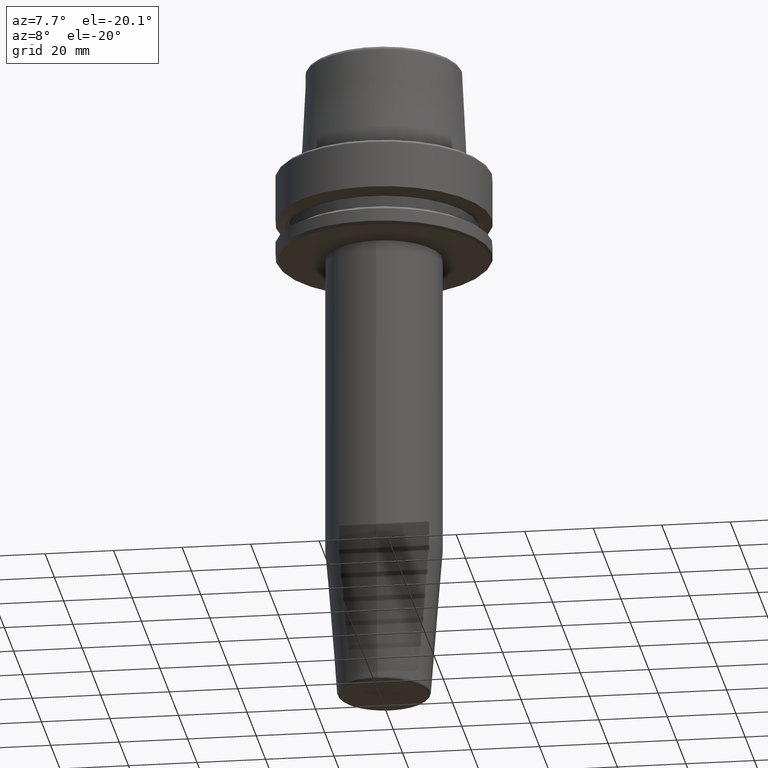
[diagram: clean part render]
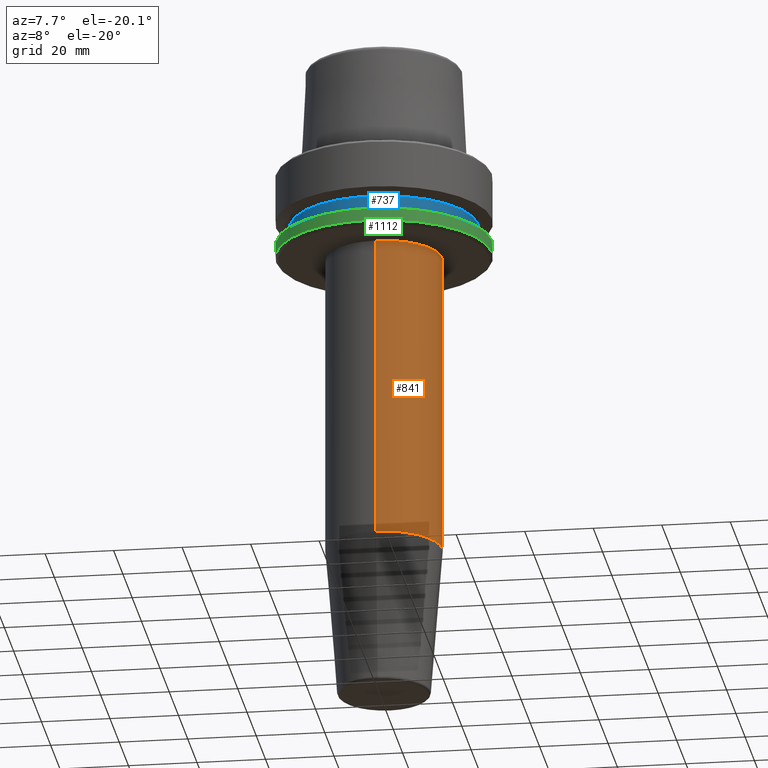
[diagram: same view with three faces highlighted in distinct colors, each labeled with its STEP entity id]
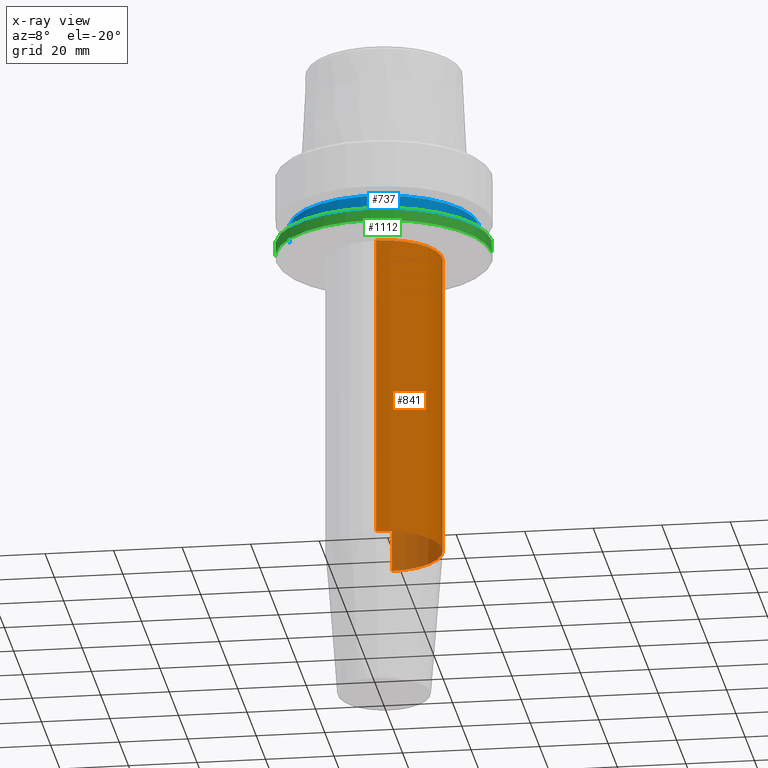
[diagram: x-ray of the same camera — body ghosted, the three highlighted faces saturated]
A machine part, auxiliary view with three faces highlighted in distinct colors.
The next image is the same camera in x-ray (body ghosted, the three faces saturated) — at least one of them is partly hidden behind the body in this view.
Their STEP definitions:

[orange] entity #841 — the highlighted cylindrical surface (partial cylindrical patch) has radius 17 mm, axis along (-0, 0, -1).
#1 = ORIENTED_EDGE ( 'NONE', *, *, #88, .T. ) ;
#51 = DIRECTION ( 'NONE',  ( 0.0000000000000000000, 1.000000000000000000, 0.0000000000000000000 ) ) ;
#88 = EDGE_CURVE ( 'NONE', #239, #1198, #798, .T. ) ;
#115 = DIRECTION ( 'NONE',  ( 0.0000000000000000000, 1.000000000000000000, 0.0000000000000000000 ) ) ;
#151 = AXIS2_PLACEMENT_3D ( 'NONE', #1211, #650, #51 ) ;
#175 = EDGE_CURVE ( 'NONE', #446, #239, #914, .T. ) ;
#181 = CARTESIAN_POINT ( 'NONE',  ( 2.081899558550499500E-015, -16.99999999999998600, -160.0000000000000000 ) ) ;
#188 = CARTESIAN_POINT ( 'NONE',  ( 0.0000000000000000000, 16.99999999999998900, -25.99999999999999600 ) ) ;
#211 = AXIS2_PLACEMENT_3D ( 'NONE', #262, #940, #366 ) ;
#222 = ORIENTED_EDGE ( 'NONE', *, *, #175, .T. ) ;
#239 = VERTEX_POINT ( 'NONE', #939 ) ;
#262 = CARTESIAN_POINT ( 'NONE',  ( 0.0000000000000000000, 0.0000000000000000000, -25.99999999999999600 ) ) ;
#313 = VERTEX_POINT ( 'NONE', #1248 ) ;
#324 = CYLINDRICAL_SURFACE ( 'NONE', #536, 16.99999999999998900 ) ;
#366 = DIRECTION ( 'NONE',  ( 1.000000000000000000, 0.0000000000000000000, 0.0000000000000000000 ) ) ;
#446 = VERTEX_POINT ( 'NONE', #188 ) ;
#536 = AXIS2_PLACEMENT_3D ( 'NONE', #895, #995, #115 ) ;
#560 = CIRCLE ( 'NONE', #151, 16.99999999999998600 ) ;
#572 = ORIENTED_EDGE ( 'NONE', *, *, #1237, .F. ) ;
#650 = DIRECTION ( 'NONE',  ( -0.0000000000000000000, 3.655662087007025400E-017, -1.000000000000000000 ) ) ;
#682 = EDGE_CURVE ( 'NONE', #446, #313, #1160, .T. ) ;
#699 = CARTESIAN_POINT ( 'NONE',  ( 0.0000000000000000000, -16.99999999999998200, -115.5282834233845500 ) ) ;
#776 = VECTOR ( 'NONE', #1055, 1000.000000000000000 ) ;
#798 = LINE ( 'NONE', #181, #776 ) ;
#814 = EDGE_LOOP ( 'NONE', ( #222, #1, #572, #822 ) ) ;
#822 = ORIENTED_EDGE ( 'NONE', *, *, #682, .F. ) ;
#841 = ADVANCED_FACE ( 'NONE', ( #854 ), #324, .T. ) ;
#854 = FACE_OUTER_BOUND ( 'NONE', #814, .T. ) ;
#895 = CARTESIAN_POINT ( 'NONE',  ( 0.0000000000000000000, 4.898587196589414600E-015, -160.0000000000000000 ) ) ;
#897 = VECTOR ( 'NONE', #1115, 1000.000000000000000 ) ;
#914 = CIRCLE ( 'NONE', #211, 16.99999999999998900 ) ;
#922 = CARTESIAN_POINT ( 'NONE',  ( 0.0000000000000000000, 16.99999999999999300, -160.0000000000000000 ) ) ;
#939 = CARTESIAN_POINT ( 'NONE',  ( 2.081899558550499900E-015, -16.99999999999998900, -25.99999999999999600 ) ) ;
#940 = DIRECTION ( 'NONE',  ( 0.0000000000000000000, 0.0000000000000000000, -1.000000000000000000 ) ) ;
#995 = DIRECTION ( 'NONE',  ( -0.0000000000000000000, 3.655662087007025400E-017, -1.000000000000000000 ) ) ;
#1055 = DIRECTION ( 'NONE',  ( -0.0000000000000000000, 3.655662087007025400E-017, -1.000000000000000000 ) ) ;
#1115 = DIRECTION ( 'NONE',  ( -0.0000000000000000000, 3.655662087007025400E-017, -1.000000000000000000 ) ) ;
#1160 = LINE ( 'NONE', #922, #897 ) ;
#1198 = VERTEX_POINT ( 'NONE', #699 ) ;
#1211 = CARTESIAN_POINT ( 'NONE',  ( 0.0000000000000000000, 3.272851514256864700E-015, -115.5282834233845500 ) ) ;
#1237 = EDGE_CURVE ( 'NONE', #313, #1198, #560, .T. ) ;
#1248 = CARTESIAN_POINT ( 'NONE',  ( 2.081899558550499100E-015, 16.99999999999998900, -115.5282834233845500 ) ) ;

[blue] entity #737 — the highlighted cylindrical surface (partial cylindrical patch) has radius 27.5 mm, axis along (-0, -0, 1).
#31 = DIRECTION ( 'NONE',  ( 1.000000000000000000, 0.0000000000000000000, 0.0000000000000000000 ) ) ;
#57 = VERTEX_POINT ( 'NONE', #1014 ) ;
#87 = DIRECTION ( 'NONE',  ( -0.0000000000000000000, -0.0000000000000000000, 1.000000000000000000 ) ) ;
#92 = CIRCLE ( 'NONE', #590, 27.49999999999999600 ) ;
#190 = CIRCLE ( 'NONE', #983, 27.49999999999999600 ) ;
#194 = LINE ( 'NONE', #804, #1259 ) ;
#213 = ORIENTED_EDGE ( 'NONE', *, *, #433, .T. ) ;
#315 = DIRECTION ( 'NONE',  ( -0.0000000000000000000, -0.0000000000000000000, 1.000000000000000000 ) ) ;
#336 = VERTEX_POINT ( 'NONE', #1011 ) ;
#337 = CARTESIAN_POINT ( 'NONE',  ( 27.49999999999999600, 0.0000000000000000000, -19.90000000000001600 ) ) ;
#411 = CARTESIAN_POINT ( 'NONE',  ( 27.49999999999999600, 0.0000000000000000000, 78.96908074195309300 ) ) ;
#430 = CYLINDRICAL_SURFACE ( 'NONE', #1197, 27.49999999999999600 ) ;
#433 = EDGE_CURVE ( 'NONE', #1142, #633, #92, .T. ) ;
#525 = VECTOR ( 'NONE', #1087, 1000.000000000000000 ) ;
#528 = ORIENTED_EDGE ( 'NONE', *, *, #598, .F. ) ;
#563 = ORIENTED_EDGE ( 'NONE', *, *, #573, .T. ) ;
#573 = EDGE_CURVE ( 'NONE', #633, #336, #785, .T. ) ;
#583 = DIRECTION ( 'NONE',  ( -0.0000000000000000000, -0.0000000000000000000, 1.000000000000000000 ) ) ;
#590 = AXIS2_PLACEMENT_3D ( 'NONE', #1151, #583, #1246 ) ;
#598 = EDGE_CURVE ( 'NONE', #1142, #57, #194, .T. ) ;
#633 = VERTEX_POINT ( 'NONE', #337 ) ;
#669 = CARTESIAN_POINT ( 'NONE',  ( 0.0000000000000000000, 0.0000000000000000000, 78.96908074195309300 ) ) ;
#670 = CARTESIAN_POINT ( 'NONE',  ( -27.49999999999999600, 3.367778697655220900E-015, -19.90000000000001600 ) ) ;
#686 = CARTESIAN_POINT ( 'NONE',  ( 0.0000000000000000000, 0.0000000000000000000, -16.10000000000001600 ) ) ;
#700 = FACE_OUTER_BOUND ( 'NONE', #1051, .T. ) ;
#737 = ADVANCED_FACE ( 'NONE', ( #700 ), #430, .T. ) ;
#785 = LINE ( 'NONE', #411, #525 ) ;
#804 = CARTESIAN_POINT ( 'NONE',  ( -27.49999999999999600, 3.367778697655220900E-015, 78.96908074195309300 ) ) ;
#937 = DIRECTION ( 'NONE',  ( 1.000000000000000000, 0.0000000000000000000, 0.0000000000000000000 ) ) ;
#982 = EDGE_CURVE ( 'NONE', #57, #336, #190, .T. ) ;
#983 = AXIS2_PLACEMENT_3D ( 'NONE', #686, #87, #31 ) ;
#1011 = CARTESIAN_POINT ( 'NONE',  ( 27.49999999999999600, 0.0000000000000000000, -16.10000000000001600 ) ) ;
#1014 = CARTESIAN_POINT ( 'NONE',  ( -27.49999999999999600, 3.367778697655220900E-015, -16.10000000000001600 ) ) ;
#1050 = ORIENTED_EDGE ( 'NONE', *, *, #982, .F. ) ;
#1051 = EDGE_LOOP ( 'NONE', ( #528, #213, #563, #1050 ) ) ;
#1087 = DIRECTION ( 'NONE',  ( -0.0000000000000000000, -0.0000000000000000000, 1.000000000000000000 ) ) ;
#1142 = VERTEX_POINT ( 'NONE', #670 ) ;
#1151 = CARTESIAN_POINT ( 'NONE',  ( 0.0000000000000000000, 0.0000000000000000000, -19.90000000000001600 ) ) ;
#1197 = AXIS2_PLACEMENT_3D ( 'NONE', #669, #1221, #937 ) ;
#1221 = DIRECTION ( 'NONE',  ( -0.0000000000000000000, -0.0000000000000000000, 1.000000000000000000 ) ) ;
#1246 = DIRECTION ( 'NONE',  ( 1.000000000000000000, 0.0000000000000000000, 0.0000000000000000000 ) ) ;
#1259 = VECTOR ( 'NONE', #315, 1000.000000000000000 ) ;

[green] entity #1112 — the highlighted cylindrical surface (partial cylindrical patch) has radius 31.5 mm, axis along (-0, -0, 1).
#13 = CARTESIAN_POINT ( 'NONE',  ( 31.50000000000000000, 0.0000000000000000000, -25.03431457505077200 ) ) ;
#38 = EDGE_CURVE ( 'NONE', #169, #435, #1239, .T. ) ;
#53 = DIRECTION ( 'NONE',  ( 1.000000000000000000, 0.0000000000000000000, 0.0000000000000000000 ) ) ;
#160 = ORIENTED_EDGE ( 'NONE', *, *, #851, .T. ) ;
#169 = VERTEX_POINT ( 'NONE', #489 ) ;
#184 = CARTESIAN_POINT ( 'NONE',  ( -31.50000000000000000, 3.857637417314161900E-015, -25.03431457505077200 ) ) ;
#273 = VERTEX_POINT ( 'NONE', #184 ) ;
#304 = ORIENTED_EDGE ( 'NONE', *, *, #671, .T. ) ;
#308 = ORIENTED_EDGE ( 'NONE', *, *, #373, .F. ) ;
#312 = LINE ( 'NONE', #965, #355 ) ;
#351 = DIRECTION ( 'NONE',  ( 1.000000000000000000, 0.0000000000000000000, 0.0000000000000000000 ) ) ;
#355 = VECTOR ( 'NONE', #593, 1000.000000000000000 ) ;
#373 = EDGE_CURVE ( 'NONE', #273, #169, #312, .T. ) ;
#394 = CARTESIAN_POINT ( 'NONE',  ( 31.50000000000000000, 0.0000000000000000000, -21.37749907475931700 ) ) ;
#399 = DIRECTION ( 'NONE',  ( -0.0000000000000000000, -0.0000000000000000000, 1.000000000000000000 ) ) ;
#435 = VERTEX_POINT ( 'NONE', #394 ) ;
#489 = CARTESIAN_POINT ( 'NONE',  ( -31.50000000000000000, 3.857637417314162700E-015, -21.37749907475931700 ) ) ;
#521 = CARTESIAN_POINT ( 'NONE',  ( 31.50000000000000000, 0.0000000000000000000, 78.96908074195309300 ) ) ;
#571 = AXIS2_PLACEMENT_3D ( 'NONE', #976, #399, #1077 ) ;
#574 = VERTEX_POINT ( 'NONE', #13 ) ;
#593 = DIRECTION ( 'NONE',  ( -0.0000000000000000000, -0.0000000000000000000, 1.000000000000000000 ) ) ;
#653 = DIRECTION ( 'NONE',  ( -0.0000000000000000000, -0.0000000000000000000, 1.000000000000000000 ) ) ;
#664 = CIRCLE ( 'NONE', #763, 31.50000000000000000 ) ;
#671 = EDGE_CURVE ( 'NONE', #273, #574, #664, .T. ) ;
#722 = DIRECTION ( 'NONE',  ( -0.0000000000000000000, -0.0000000000000000000, 1.000000000000000000 ) ) ;
#731 = CYLINDRICAL_SURFACE ( 'NONE', #779, 31.50000000000000000 ) ;
#763 = AXIS2_PLACEMENT_3D ( 'NONE', #1214, #653, #53 ) ;
#779 = AXIS2_PLACEMENT_3D ( 'NONE', #1128, #1226, #351 ) ;
#784 = ORIENTED_EDGE ( 'NONE', *, *, #38, .F. ) ;
#813 = VECTOR ( 'NONE', #722, 1000.000000000000000 ) ;
#851 = EDGE_CURVE ( 'NONE', #574, #435, #1071, .T. ) ;
#965 = CARTESIAN_POINT ( 'NONE',  ( -31.50000000000000000, 3.857637417314162700E-015, 78.96908074195309300 ) ) ;
#976 = CARTESIAN_POINT ( 'NONE',  ( 0.0000000000000000000, 0.0000000000000000000, -21.37749907475931700 ) ) ;
#1071 = LINE ( 'NONE', #521, #813 ) ;
#1077 = DIRECTION ( 'NONE',  ( 1.000000000000000000, 0.0000000000000000000, 0.0000000000000000000 ) ) ;
#1092 = FACE_OUTER_BOUND ( 'NONE', #1208, .T. ) ;
#1112 = ADVANCED_FACE ( 'NONE', ( #1092 ), #731, .T. ) ;
#1128 = CARTESIAN_POINT ( 'NONE',  ( 0.0000000000000000000, 0.0000000000000000000, 78.96908074195309300 ) ) ;
#1208 = EDGE_LOOP ( 'NONE', ( #308, #304, #160, #784 ) ) ;
#1214 = CARTESIAN_POINT ( 'NONE',  ( 0.0000000000000000000, 0.0000000000000000000, -25.03431457505077200 ) ) ;
#1226 = DIRECTION ( 'NONE',  ( -0.0000000000000000000, -0.0000000000000000000, 1.000000000000000000 ) ) ;
#1239 = CIRCLE ( 'NONE', #571, 31.50000000000000000 ) ;